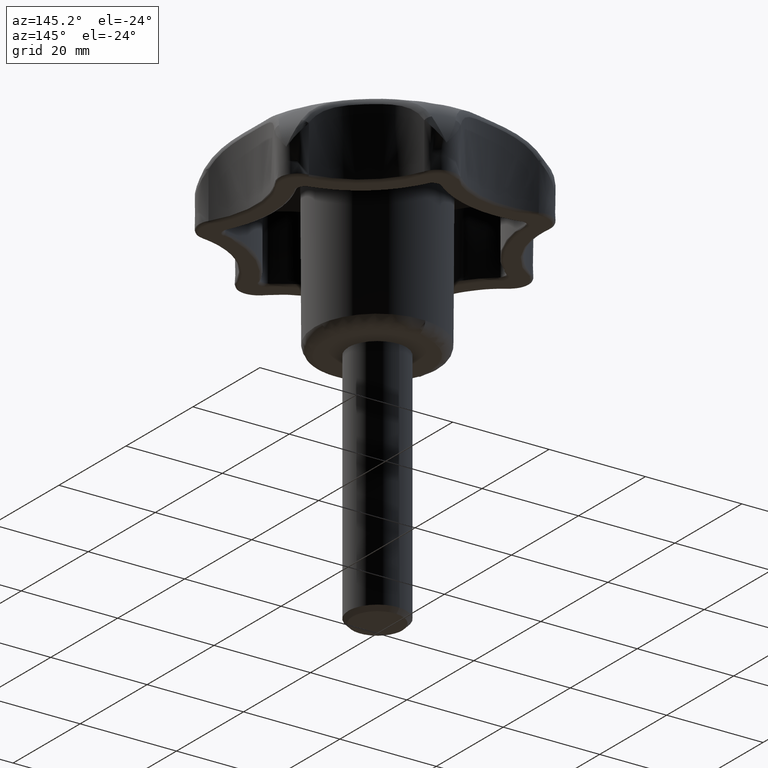
[diagram: clean part render]
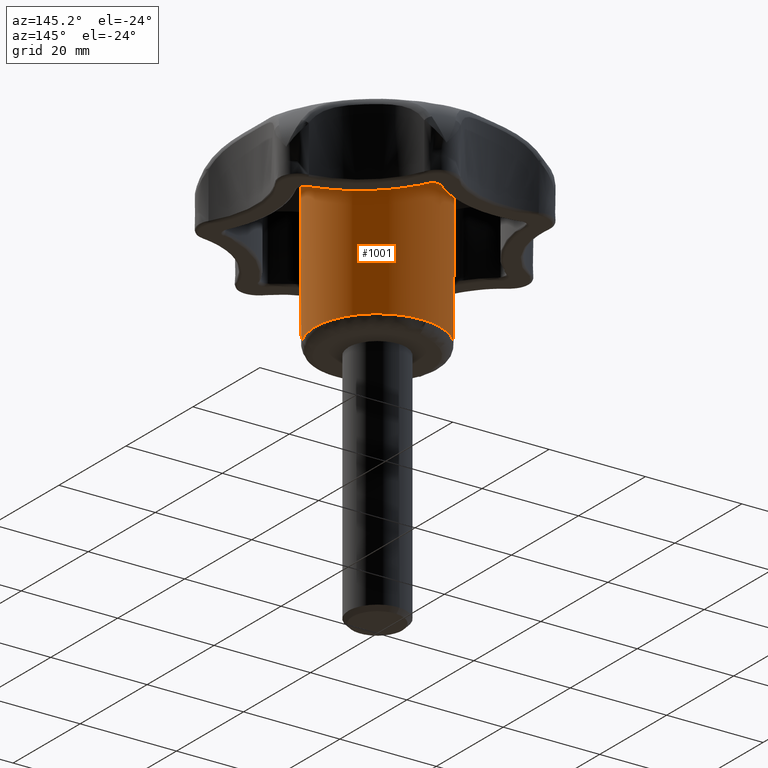
[diagram: same view with one face highlighted and labeled with its STEP entity id]
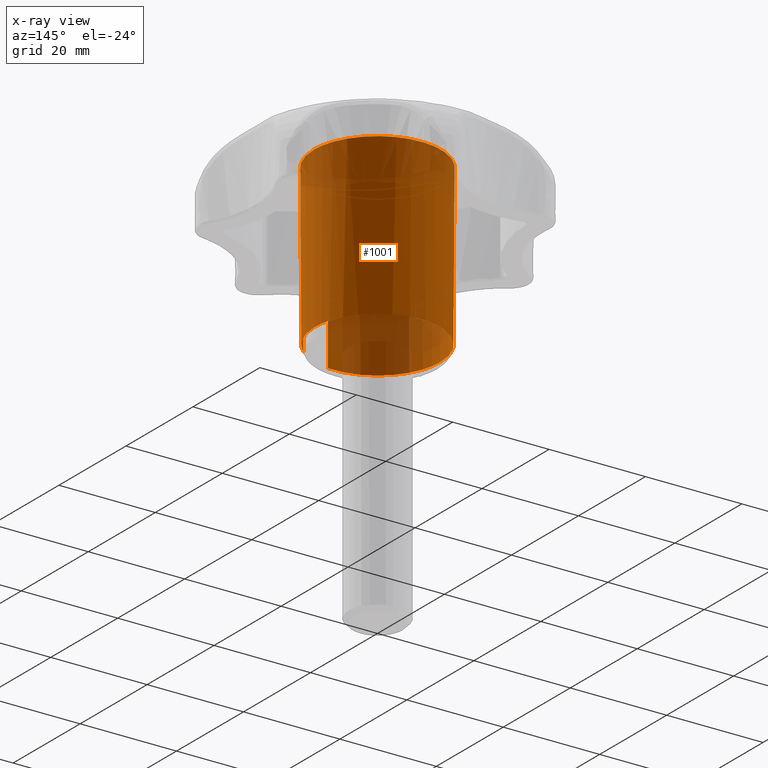
[diagram: x-ray of the same camera — body ghosted, the highlighted face saturated]
A machine part, auxiliary view. The second image highlights one B-rep face of the part: STEP entity #1001.
The next image is the same camera in x-ray: the body ghosted, the highlighted face saturated — about 36% of this face is hidden behind the body in this view.
In plain terms, the highlighted face is a freeform B-spline surface patch.
Its self-contained STEP definition (entity closure, byte-faithful):
#831=CARTESIAN_POINT('',(8.537657110153468,-9.811571843862771,1.164273376825123));
#832=CARTESIAN_POINT('',(13.587855886186048,-5.417080708902278,1.164273376825123));
#833=CARTESIAN_POINT('',(12.946218430448161,1.246579050425291,1.164273376825123));
#834=CARTESIAN_POINT('',(11.699639380022864,14.192797480873443,1.164273376825124));
#835=CARTESIAN_POINT('',(-1.246579050425291,12.946218430448161,1.164273376825124));
#836=CARTESIAN_POINT('',(-14.192797480873443,11.699639380022864,1.164273376825124));
#837=CARTESIAN_POINT('',(-12.946218430448161,-1.246579050425291,1.164273376825123));
#838=CARTESIAN_POINT('',(-11.699639380022864,-14.192797480873443,1.164273376825123));
#839=CARTESIAN_POINT('',(1.246579050425291,-12.946218430448161,1.164273376825123));
#840=CARTESIAN_POINT('',(8.656861481147860,-9.948562851468710,35.845598883833375));
#841=CARTESIAN_POINT('',(13.777572080357048,-5.492715006485227,35.845598883833375));
#842=CARTESIAN_POINT('',(13.126975962033990,1.263984021096227,35.845598883833382));
#843=CARTESIAN_POINT('',(11.862991940937757,14.390959983130216,35.845598883833375));
#844=CARTESIAN_POINT('',(-1.263984021096227,13.126975962033990,35.845598883833382));
#845=CARTESIAN_POINT('',(-14.390959983130216,11.862991940937757,35.845598883833375));
#846=CARTESIAN_POINT('',(-13.126975962033990,-1.263984021096227,35.845598883833382));
#847=CARTESIAN_POINT('',(-11.862991940937757,-14.390959983130216,35.845598883833375));
#848=CARTESIAN_POINT('',(1.263984021096227,-13.126975962033990,35.845598883833382));
#856=(BOUNDED_SURFACE()B_SPLINE_SURFACE(2,1,((#831,#840),(#832,#841),(#833,#842),(#834,#843),(#835,#844),(#836,#845),(#837,#846),(#838,#847),(#839,#848)),.UNSPECIFIED.,.F.,.F.,.U.)B_SPLINE_SURFACE_WITH_KNOTS((3,2,2,2,3),(2,2),(0.0,13.110047601964490,34.960126938571982,56.810206275179453,78.660285611786932),(0.0,34.681800921251053),.UNSPECIFIED.)GEOMETRIC_REPRESENTATION_ITEM()RATIONAL_B_SPLINE_SURFACE(((0.859411254969543,0.859411254969543),(0.824264068711928,0.824264068711928),(1.0,1.0),(0.707106781186548,0.707106781186548),(1.0,1.0),(0.707106781186548,0.707106781186548),(1.0,1.0),(0.707106781186548,0.707106781186548),(1.0,1.0)))REPRESENTATION_ITEM('')SURFACE());
#857=CARTESIAN_POINT('',(13.010417000000000,0.0,1.989527999999895));
#858=VERTEX_POINT('',#857);
#859=CARTESIAN_POINT('',(8.540491427876603,-9.814833499601850,1.989527564466537));
#860=VERTEX_POINT('',#859);
#861=CARTESIAN_POINT('',(13.010417000000000,0.0,1.989527999999895));
#862=CARTESIAN_POINT('',(13.010417000000000,-5.925275821028838,1.989527999999895));
#863=CARTESIAN_POINT('',(8.540491427876603,-9.814833499601848,1.989527564466538));
#871=(BOUNDED_CURVE()B_SPLINE_CURVE(2,(#861,#862,#863),.UNSPECIFIED.,.F.,.U.)B_SPLINE_CURVE_WITH_KNOTS((3,3),(0.500000000000000,0.635463025041077),.UNSPECIFIED.)CURVE()GEOMETRIC_REPRESENTATION_ITEM()RATIONAL_B_SPLINE_CURVE((1.0,0.841295194262046,0.854579453114650))REPRESENTATION_ITEM(''));
#872=EDGE_CURVE('',#858,#860,#871,.T.);
#873=ORIENTED_EDGE('',*,*,#872,.F.);
#874=CARTESIAN_POINT('',(-0.907258681824442,12.978745401541699,1.989527999242498));
#875=VERTEX_POINT('',#874);
#876=CARTESIAN_POINT('',(-0.907258681824442,12.978745401541701,1.989527999242498));
#877=CARTESIAN_POINT('',(-0.454182154693855,13.010417000000002,1.989527999999895));
#878=CARTESIAN_POINT('',(0.0,13.010417000000000,1.989527999999895));
#879=CARTESIAN_POINT('',(13.010417000000002,13.010417000000002,1.989527999999895));
#880=CARTESIAN_POINT('',(13.010417000000000,0.0,1.989527999999895));
#888=(BOUNDED_CURVE()B_SPLINE_CURVE(2,(#876,#877,#878,#879,#880),.UNSPECIFIED.,.F.,.U.)B_SPLINE_CURVE_WITH_KNOTS((3,2,3),(0.237833686533483,0.250000000000000,0.500000000000000),.UNSPECIFIED.)CURVE()GEOMETRIC_REPRESENTATION_ITEM()RATIONAL_B_SPLINE_CURVE((0.972879876383574,0.985746277150794,1.0,0.707106781186548,1.0))REPRESENTATION_ITEM(''));
#889=EDGE_CURVE('',#875,#858,#888,.T.);
#890=ORIENTED_EDGE('',*,*,#889,.F.);
#891=CARTESIAN_POINT('',(-13.010417000000000,0.0,1.989527999999895));
#892=VERTEX_POINT('',#891);
#893=CARTESIAN_POINT('',(-13.010417000000000,0.0,1.989527999999895));
#894=CARTESIAN_POINT('',(-13.010417000000000,12.132693250687261,1.989527999999895));
#895=CARTESIAN_POINT('',(-0.907258681824442,12.978745401541698,1.989527999242499));
#903=(BOUNDED_CURVE()B_SPLINE_CURVE(2,(#893,#894,#895),.UNSPECIFIED.,.F.,.U.)B_SPLINE_CURVE_WITH_KNOTS((3,3),(0.0,0.237833686533483),.UNSPECIFIED.)CURVE()GEOMETRIC_REPRESENTATION_ITEM()RATIONAL_B_SPLINE_CURVE((1.0,0.721360504035754,0.972879876383574))REPRESENTATION_ITEM(''));
#904=EDGE_CURVE('',#892,#875,#903,.T.);
#905=ORIENTED_EDGE('',*,*,#904,.F.);
#906=CARTESIAN_POINT('',(-13.009389752162310,-0.163489418983758,1.989527999240549));
#907=VERTEX_POINT('',#906);
#908=CARTESIAN_POINT('',(-13.009389752162310,-0.163489418983758,1.989527999240550));
#909=CARTESIAN_POINT('',(-13.010417000000004,-0.081747936760005,1.989527999999895));
#910=CARTESIAN_POINT('',(-13.010417000000000,0.0,1.989527999999895));
#918=(BOUNDED_CURVE()B_SPLINE_CURVE(2,(#908,#909,#910),.UNSPECIFIED.,.F.,.U.)B_SPLINE_CURVE_WITH_KNOTS((3,3),(0.997784295920031,1.0),.UNSPECIFIED.)CURVE()GEOMETRIC_REPRESENTATION_ITEM()RATIONAL_B_SPLINE_CURVE((0.994854295640107,0.997404141200320,1.0))REPRESENTATION_ITEM(''));
#919=EDGE_CURVE('',#907,#892,#918,.T.);
#920=ORIENTED_EDGE('',*,*,#919,.F.);
#921=CARTESIAN_POINT('',(1.246971781955607,-12.950521682396181,1.989527690132811));
#922=VERTEX_POINT('',#921);
#923=CARTESIAN_POINT('',(1.246971781955608,-12.950521682396186,1.989527690132811));
#924=CARTESIAN_POINT('',(0.624924355393267,-13.010417000000004,1.989527999999894));
#925=CARTESIAN_POINT('',(0.0,-13.010417000000000,1.989527999999895));
#926=CARTESIAN_POINT('',(-12.847942000444993,-13.010417000000000,1.989527999999895));
#927=CARTESIAN_POINT('',(-13.009389752162308,-0.163489418983758,1.989527999240550));
#935=(BOUNDED_CURVE()B_SPLINE_CURVE(2,(#923,#924,#925,#926,#927),.UNSPECIFIED.,.F.,.U.)B_SPLINE_CURVE_WITH_KNOTS((3,2,3),(0.733349186581050,0.750000000000000,0.997784295920032),.UNSPECIFIED.)CURVE()GEOMETRIC_REPRESENTATION_ITEM()RATIONAL_B_SPLINE_CURVE((0.963583262066133,0.980492358647446,1.0,0.709702639986228,0.994854295640108))REPRESENTATION_ITEM(''));
#936=EDGE_CURVE('',#922,#907,#935,.T.);
#937=ORIENTED_EDGE('',*,*,#936,.F.);
#938=CARTESIAN_POINT('',(1.263535621009356,-13.122569540076830,34.999712545698870));
#939=VERTEX_POINT('',#938);
#940=CARTESIAN_POINT('',(1.246971781955607,-12.950521682396181,1.989527690132811));
#941=CARTESIAN_POINT('',(1.263535621009356,-13.122569540076830,34.999712545698870));
#942=QUASI_UNIFORM_CURVE('',1,(#940,#941),.UNSPECIFIED.,.F.,.U.);
#943=EDGE_CURVE('',#922,#939,#942,.T.);
#944=ORIENTED_EDGE('',*,*,#943,.T.);
#945=CARTESIAN_POINT('',(-13.183260357310299,0.0,34.999712895857549));
#946=VERTEX_POINT('',#945);
#947=CARTESIAN_POINT('',(1.263535621009356,-13.122569540076830,34.999712545698884));
#948=CARTESIAN_POINT('',(0.633225377365171,-13.183260357310305,34.999712895857549));
#949=CARTESIAN_POINT('',(0.0,-13.183260357310299,34.999712895857549));
#950=CARTESIAN_POINT('',(-13.183260357310301,-13.183260357310301,34.999712895857549));
#951=CARTESIAN_POINT('',(-13.183260357310299,0.0,34.999712895857549));
#959=(BOUNDED_CURVE()B_SPLINE_CURVE(2,(#947,#948,#949,#950,#951),.UNSPECIFIED.,.F.,.U.)B_SPLINE_CURVE_WITH_KNOTS((3,2,3),(0.733349214851964,0.750000000000000,1.0),.UNSPECIFIED.)CURVE()GEOMETRIC_REPRESENTATION_ITEM()RATIONAL_B_SPLINE_CURVE((0.963583319485032,0.980492391768882,1.0,0.707106781186548,1.0))REPRESENTATION_ITEM(''));
#960=EDGE_CURVE('',#939,#946,#959,.T.);
#961=ORIENTED_EDGE('',*,*,#960,.T.);
#962=CARTESIAN_POINT('',(13.183260357310299,0.0,34.999712895857549));
#963=VERTEX_POINT('',#962);
#964=CARTESIAN_POINT('',(-13.183260357310299,0.0,34.999712895857549));
#965=CARTESIAN_POINT('',(-13.183260357310301,13.183260357310301,34.999712895857549));
#966=CARTESIAN_POINT('',(0.0,13.183260357310299,34.999712895857549));
#967=CARTESIAN_POINT('',(13.183260357310301,13.183260357310301,34.999712895857549));
#968=CARTESIAN_POINT('',(13.183260357310299,0.0,34.999712895857549));
#976=(BOUNDED_CURVE()B_SPLINE_CURVE(2,(#964,#965,#966,#967,#968),.UNSPECIFIED.,.F.,.U.)B_SPLINE_CURVE_WITH_KNOTS((3,2,3),(0.0,0.250000000000000,0.500000000000000),.UNSPECIFIED.)CURVE()GEOMETRIC_REPRESENTATION_ITEM()RATIONAL_B_SPLINE_CURVE((1.0,0.707106781186548,1.0,0.707106781186548,1.0))REPRESENTATION_ITEM(''));
#977=EDGE_CURVE('',#946,#963,#976,.T.);
#978=ORIENTED_EDGE('',*,*,#977,.T.);
#979=CARTESIAN_POINT('',(8.653952754207705,-9.945222739615740,34.999712635115799));
#980=VERTEX_POINT('',#979);
#981=CARTESIAN_POINT('',(13.183260357310299,0.0,34.999712895857549));
#982=CARTESIAN_POINT('',(13.183260357310299,-6.003992360492233,34.999712895857556));
#983=CARTESIAN_POINT('',(8.653952754207705,-9.945222739615740,34.999712635115799));
#991=(BOUNDED_CURVE()B_SPLINE_CURVE(2,(#981,#982,#983),.UNSPECIFIED.,.F.,.U.)B_SPLINE_CURVE_WITH_KNOTS((3,3),(0.500000000000000,0.635463011089689),.UNSPECIFIED.)CURVE()GEOMETRIC_REPRESENTATION_ITEM()RATIONAL_B_SPLINE_CURVE((1.0,0.841295210607114,0.854579450378350))REPRESENTATION_ITEM(''));
#992=EDGE_CURVE('',#963,#980,#991,.T.);
#993=ORIENTED_EDGE('',*,*,#992,.T.);
#994=CARTESIAN_POINT('',(8.540491427876603,-9.814833499601850,1.989527564466537));
#995=CARTESIAN_POINT('',(8.653952754207705,-9.945222739615740,34.999712635115799));
#996=QUASI_UNIFORM_CURVE('',1,(#994,#995),.UNSPECIFIED.,.F.,.U.);
#997=EDGE_CURVE('',#860,#980,#996,.T.);
#998=ORIENTED_EDGE('',*,*,#997,.F.);
#999=EDGE_LOOP('',(#873,#890,#905,#920,#937,#944,#961,#978,#993,#998));
#1000=FACE_OUTER_BOUND('',#999,.T.);
#1001=ADVANCED_FACE('',(#1000),#856,.T.);